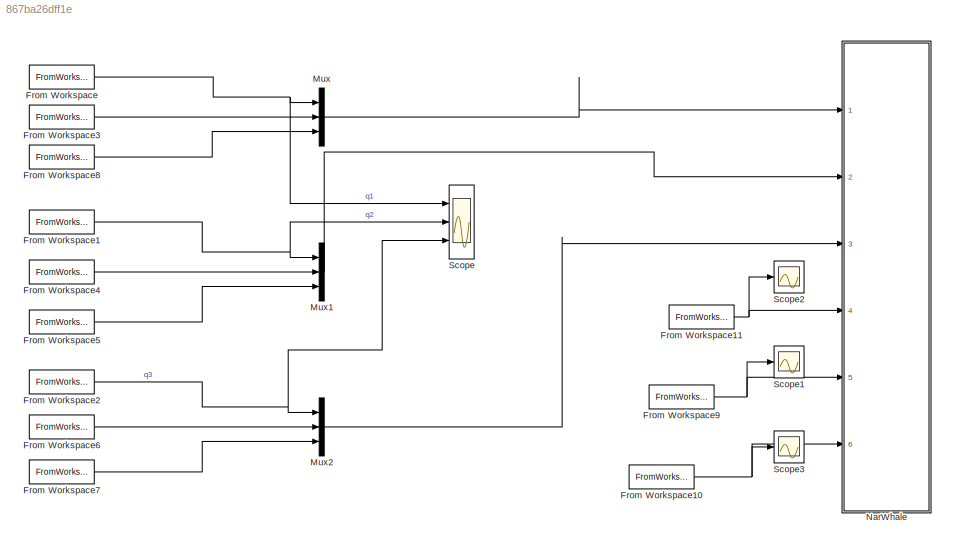
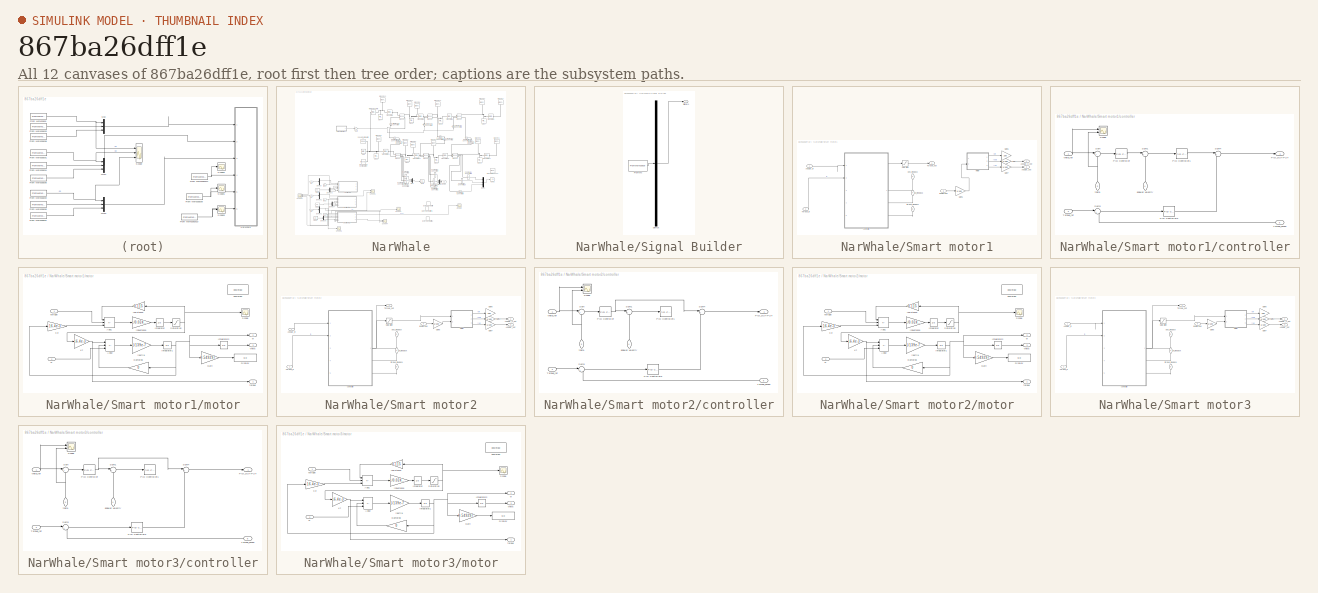
[diagram: thumbnail index - all 12 canvases of the model, root first then tree order]
MODEL slx_867ba26dff1e
KIND model
CONFIG AbsTol = auto
CONFIG EnableMultiTasking = off
CONFIG FixedStep = auto
CONFIG MaxStep = auto
CONFIG MinStep = auto
CONFIG RelTol = 1e-3
CONFIG SampleTimeConstraint = Unconstrained
CONFIG SolverName = VariableStepAuto
CONFIG StartTime = 0.0
CONFIG StopTime = 5
BLOCK [FromWorkspace] From Workspace
  Commented = on
  VariableName = q1dsim
BLOCK [FromWorkspace] From Workspace1
  Commented = on
  VariableName = q2dsim
BLOCK [FromWorkspace] From Workspace10
  Commented = on
  VariableName = tau2sim
BLOCK [FromWorkspace] From Workspace11
  Commented = on
  VariableName = tau3sim
BLOCK [FromWorkspace] From Workspace2
  Commented = on
  VariableName = q3dsim
BLOCK [FromWorkspace] From Workspace3
  Commented = on
  VariableName = q1vsim
BLOCK [FromWorkspace] From Workspace4
  Commented = on
  VariableName = q2vsim
BLOCK [FromWorkspace] From Workspace5
  Commented = on
  VariableName = q2asim
BLOCK [FromWorkspace] From Workspace6
  Commented = on
  VariableName = q3vsim
BLOCK [FromWorkspace] From Workspace7
  Commented = on
  VariableName = q3asim
BLOCK [FromWorkspace] From Workspace8
  Commented = on
  VariableName = q1asim
BLOCK [FromWorkspace] From Workspace9
  Commented = on
  VariableName = tau1sim
BLOCK [Mux] Mux
  DisplayOption = bar
  Inputs = 3
  Ports = [3, 1]
BLOCK [Mux] Mux1
  DisplayOption = bar
  Inputs = 3
  Ports = [3, 1]
BLOCK [Mux] Mux2
  DisplayOption = bar
  Inputs = 3
  Ports = [3, 1]
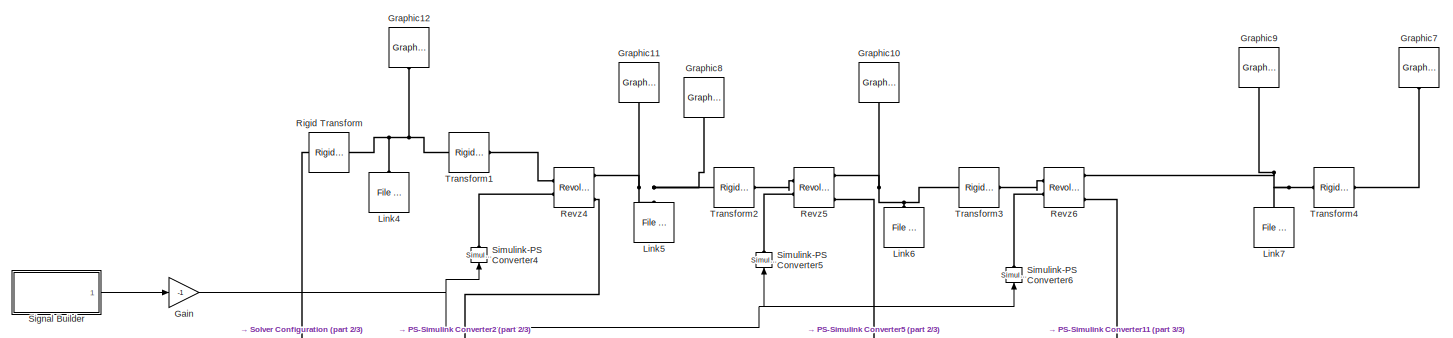
[diagram: NarWhale - part 1/3, full width, top band]
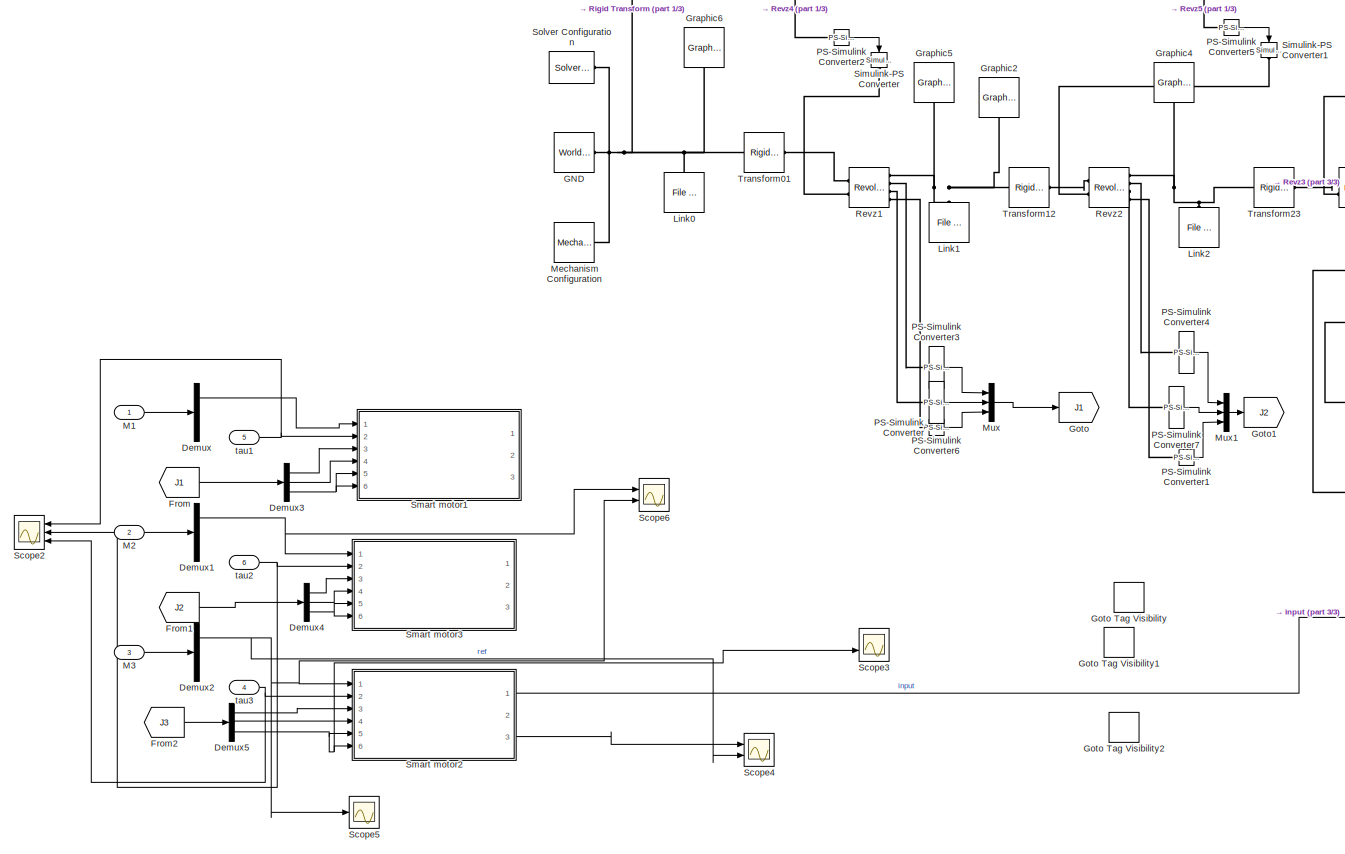
[diagram: NarWhale - part 2/3, full width, middle band]
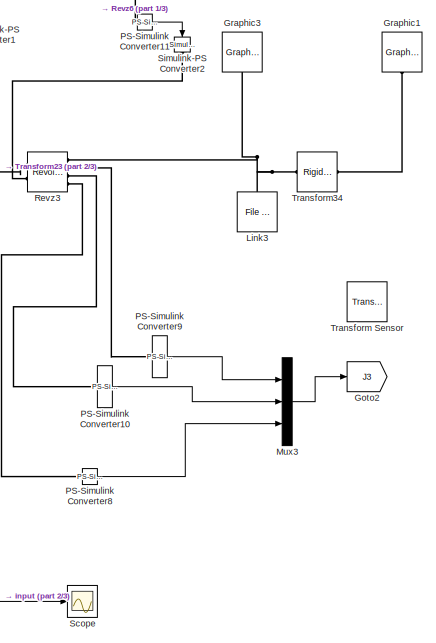
[diagram: NarWhale - part 3/3, middle right region]
BLOCK [SubSystem] NarWhale
  Ports = [6]
  RequestExecContextInheritance = off
BLOCK [Demux] NarWhale/Demux
  Commented = on
  Outputs = 3
  Ports = [1, 3]
BLOCK [Demux] NarWhale/Demux1
  Commented = on
  Outputs = 3
  Ports = [1, 3]
BLOCK [Demux] NarWhale/Demux2
  Commented = on
  Outputs = 3
  Ports = [1, 3]
BLOCK [Demux] NarWhale/Demux3
  Commented = on
  Outputs = 3
  Ports = [1, 3]
BLOCK [Demux] NarWhale/Demux4
  Commented = on
  Outputs = 3
  Ports = [1, 3]
BLOCK [Demux] NarWhale/Demux5
  Commented = on
  Outputs = 3
  Ports = [1, 3]
BLOCK [From] NarWhale/From
  Commented = on
  GotoTag = J1
BLOCK [From] NarWhale/From1
  Commented = on
  GotoTag = J2
BLOCK [From] NarWhale/From2
  Commented = on
  GotoTag = J3
BLOCK [Reference] NarWhale/GND  REF=sm_lib/Frames and
Transforms/World Frame
  Ports = [0, 0, 0, 0, 0, 0, 1]
  SourceBlock = sm_lib/Frames and\nTransforms/World Frame
  SourceProductBaseCode = MS
  SourceType = World Frame
BLOCK [Gain] NarWhale/Gain
  Gain = -1
BLOCK [Goto] NarWhale/Goto
  GotoTag = J1
BLOCK [GotoTagVisibility] NarWhale/Goto Tag Visibility
  GotoTag = J1
BLOCK [GotoTagVisibility] NarWhale/Goto Tag Visibility1
  GotoTag = J2
BLOCK [GotoTagVisibility] NarWhale/Goto Tag Visibility2
  GotoTag = J3
BLOCK [Goto] NarWhale/Goto1
  GotoTag = J2
BLOCK [Goto] NarWhale/Goto2
  GotoTag = J3
BLOCK [Reference] NarWhale/Graphic1  REF=sm_lib/Body Elements/Graphic
  NameLocation = left
  Ports = [0, 0, 0, 0, 0, 0, 1]
  SourceBlock = sm_lib/Body Elements/Graphic
  SourceProductBaseCode = MS
  SourceType = Graphic
BLOCK [Reference] NarWhale/Graphic10  REF=sm_lib/Body Elements/Graphic
  NameLocation = left
  Ports = [0, 0, 0, 0, 0, 0, 1]
  SourceBlock = sm_lib/Body Elements/Graphic
  SourceProductBaseCode = MS
  SourceType = Graphic
BLOCK [Reference] NarWhale/Graphic11  REF=sm_lib/Body Elements/Graphic
  NameLocation = left
  Ports = [0, 0, 0, 0, 0, 0, 1]
  SourceBlock = sm_lib/Body Elements/Graphic
  SourceProductBaseCode = MS
  SourceType = Graphic
BLOCK [Reference] NarWhale/Graphic12  REF=sm_lib/Body Elements/Graphic
  NameLocation = left
  Ports = [0, 0, 0, 0, 0, 0, 1]
  SourceBlock = sm_lib/Body Elements/Graphic
  SourceProductBaseCode = MS
  SourceType = Graphic
BLOCK [Reference] NarWhale/Graphic2  REF=sm_lib/Body Elements/Graphic
  NameLocation = left
  Ports = [0, 0, 0, 0, 0, 0, 1]
  SourceBlock = sm_lib/Body Elements/Graphic
  SourceProductBaseCode = MS
  SourceType = Graphic
BLOCK [Reference] NarWhale/Graphic3  REF=sm_lib/Body Elements/Graphic
  NameLocation = left
  Ports = [0, 0, 0, 0, 0, 0, 1]
  SourceBlock = sm_lib/Body Elements/Graphic
  SourceProductBaseCode = MS
  SourceType = Graphic
BLOCK [Reference] NarWhale/Graphic4  REF=sm_lib/Body Elements/Graphic
  NameLocation = left
  Ports = [0, 0, 0, 0, 0, 0, 1]
  SourceBlock = sm_lib/Body Elements/Graphic
  SourceProductBaseCode = MS
  SourceType = Graphic
BLOCK [Reference] NarWhale/Graphic5  REF=sm_lib/Body Elements/Graphic
  NameLocation = left
  Ports = [0, 0, 0, 0, 0, 0, 1]
  SourceBlock = sm_lib/Body Elements/Graphic
  SourceProductBaseCode = MS
  SourceType = Graphic
BLOCK [Reference] NarWhale/Graphic6  REF=sm_lib/Body Elements/Graphic
  NameLocation = left
  Ports = [0, 0, 0, 0, 0, 0, 1]
  SourceBlock = sm_lib/Body Elements/Graphic
  SourceProductBaseCode = MS
  SourceType = Graphic
BLOCK [Reference] NarWhale/Graphic7  REF=sm_lib/Body Elements/Graphic
  NameLocation = left
  Ports = [0, 0, 0, 0, 0, 0, 1]
  SourceBlock = sm_lib/Body Elements/Graphic
  SourceProductBaseCode = MS
  SourceType = Graphic
BLOCK [Reference] NarWhale/Graphic8  REF=sm_lib/Body Elements/Graphic
  NameLocation = left
  Ports = [0, 0, 0, 0, 0, 0, 1]
  SourceBlock = sm_lib/Body Elements/Graphic
  SourceProductBaseCode = MS
  SourceType = Graphic
BLOCK [Reference] NarWhale/Graphic9  REF=sm_lib/Body Elements/Graphic
  NameLocation = left
  Ports = [0, 0, 0, 0, 0, 0, 1]
  SourceBlock = sm_lib/Body Elements/Graphic
  SourceProductBaseCode = MS
  SourceType = Graphic
BLOCK [Reference] NarWhale/Link0  REF=sm_lib/Body Elements/File Solid
  Ports = [0, 0, 0, 0, 0, 0, 1]
  SourceBlock = sm_lib/Body Elements/File Solid
  SourceProductBaseCode = MS
  SourceType = File Solid
BLOCK [Reference] NarWhale/Link1  REF=sm_lib/Body Elements/File Solid
  Ports = [0, 0, 0, 0, 0, 0, 1]
  SourceBlock = sm_lib/Body Elements/File Solid
  SourceProductBaseCode = MS
  SourceType = File Solid
BLOCK [Reference] NarWhale/Link2  REF=sm_lib/Body Elements/File Solid
  Ports = [0, 0, 0, 0, 0, 0, 1]
  SourceBlock = sm_lib/Body Elements/File Solid
  SourceProductBaseCode = MS
  SourceType = File Solid
BLOCK [Reference] NarWhale/Link3  REF=sm_lib/Body Elements/File Solid
  Ports = [0, 0, 0, 0, 0, 0, 1]
  SourceBlock = sm_lib/Body Elements/File Solid
  SourceProductBaseCode = MS
  SourceType = File Solid
BLOCK [Reference] NarWhale/Link4  REF=sm_lib/Body Elements/File Solid
  Ports = [0, 0, 0, 0, 0, 0, 1]
  SourceBlock = sm_lib/Body Elements/File Solid
  SourceProductBaseCode = MS
  SourceType = File Solid
BLOCK [Reference] NarWhale/Link5  REF=sm_lib/Body Elements/File Solid
  Ports = [0, 0, 0, 0, 0, 0, 1]
  SourceBlock = sm_lib/Body Elements/File Solid
  SourceProductBaseCode = MS
  SourceType = File Solid
BLOCK [Reference] NarWhale/Link6  REF=sm_lib/Body Elements/File Solid
  Ports = [0, 0, 0, 0, 0, 0, 1]
  SourceBlock = sm_lib/Body Elements/File Solid
  SourceProductBaseCode = MS
  SourceType = File Solid
BLOCK [Reference] NarWhale/Link7  REF=sm_lib/Body Elements/File Solid
  Ports = [0, 0, 0, 0, 0, 0, 1]
  SourceBlock = sm_lib/Body Elements/File Solid
  SourceProductBaseCode = MS
  SourceType = File Solid
BLOCK [Inport] NarWhale/M1
BLOCK [Inport] NarWhale/M2
  Port = 2
BLOCK [Inport] NarWhale/M3
  Port = 3
BLOCK [Reference] NarWhale/Mechanism Configuration  REF=sm_lib/Utilities/Mechanism
Configuration
  Ports = [0, 0, 0, 0, 0, 0, 1]
  SourceBlock = sm_lib/Utilities/Mechanism\nConfiguration
  SourceProductBaseCode = MS
  SourceType = Mechanism\nConfiguration
BLOCK [Mux] NarWhale/Mux
  DisplayOption = bar
  Inputs = 3
  Ports = [3, 1]
BLOCK [Mux] NarWhale/Mux1
  DisplayOption = bar
  Inputs = 3
  Ports = [3, 1]
BLOCK [Mux] NarWhale/Mux3
  DisplayOption = bar
  Inputs = 3
  Ports = [3, 1]
BLOCK [Reference] NarWhale/PS-Simulink Converter  REF=nesl_utility/PS-Simulink
Converter
  Ports = [0, 1, 0, 0, 0, 1]
  SourceBlock = nesl_utility/PS-Simulink\nConverter
  SourceProductBaseCode = PW,SS
  SourceType = PS-Simulink\nConverter
BLOCK [Reference] NarWhale/PS-Simulink Converter1  REF=nesl_utility/PS-Simulink
Converter
  Ports = [0, 1, 0, 0, 0, 1]
  SourceBlock = nesl_utility/PS-Simulink\nConverter
  SourceProductBaseCode = PW,SS
  SourceType = PS-Simulink\nConverter
BLOCK [Reference] NarWhale/PS-Simulink Converter10  REF=nesl_utility/PS-Simulink
Converter
  Ports = [0, 1, 0, 0, 0, 1]
  SourceBlock = nesl_utility/PS-Simulink\nConverter
  SourceProductBaseCode = PW,SS
  SourceType = PS-Simulink\nConverter
BLOCK [Reference] NarWhale/PS-Simulink Converter11  REF=nesl_utility/PS-Simulink
Converter
  Ports = [0, 1, 0, 0, 0, 1]
  SourceBlock = nesl_utility/PS-Simulink\nConverter
  SourceProductBaseCode = PW,SS
  SourceType = PS-Simulink\nConverter
BLOCK [Reference] NarWhale/PS-Simulink Converter2  REF=nesl_utility/PS-Simulink
Converter
  Ports = [0, 1, 0, 0, 0, 1]
  SourceBlock = nesl_utility/PS-Simulink\nConverter
  SourceProductBaseCode = PW,SS
  SourceType = PS-Simulink\nConverter
BLOCK [Reference] NarWhale/PS-Simulink Converter3  REF=nesl_utility/PS-Simulink
Converter
  Ports = [0, 1, 0, 0, 0, 1]
  SourceBlock = nesl_utility/PS-Simulink\nConverter
  SourceProductBaseCode = PW,SS
  SourceType = PS-Simulink\nConverter
BLOCK [Reference] NarWhale/PS-Simulink Converter4  REF=nesl_utility/PS-Simulink
Converter
  Ports = [0, 1, 0, 0, 0, 1]
  SourceBlock = nesl_utility/PS-Simulink\nConverter
  SourceProductBaseCode = PW,SS
  SourceType = PS-Simulink\nConverter
BLOCK [Reference] NarWhale/PS-Simulink Converter5  REF=nesl_utility/PS-Simulink
Converter
  Ports = [0, 1, 0, 0, 0, 1]
  SourceBlock = nesl_utility/PS-Simulink\nConverter
  SourceProductBaseCode = PW,SS
  SourceType = PS-Simulink\nConverter
BLOCK [Reference] NarWhale/PS-Simulink Converter6  REF=nesl_utility/PS-Simulink
Converter
  Ports = [0, 1, 0, 0, 0, 1]
  SourceBlock = nesl_utility/PS-Simulink\nConverter
  SourceProductBaseCode = PW,SS
  SourceType = PS-Simulink\nConverter
BLOCK [Reference] NarWhale/PS-Simulink Converter7  REF=nesl_utility/PS-Simulink
Converter
  Ports = [0, 1, 0, 0, 0, 1]
  SourceBlock = nesl_utility/PS-Simulink\nConverter
  SourceProductBaseCode = PW,SS
  SourceType = PS-Simulink\nConverter
BLOCK [Reference] NarWhale/PS-Simulink Converter8  REF=nesl_utility/PS-Simulink
Converter
  Ports = [0, 1, 0, 0, 0, 1]
  SourceBlock = nesl_utility/PS-Simulink\nConverter
  SourceProductBaseCode = PW,SS
  SourceType = PS-Simulink\nConverter
BLOCK [Reference] NarWhale/PS-Simulink Converter9  REF=nesl_utility/PS-Simulink
Converter
  Ports = [0, 1, 0, 0, 0, 1]
  SourceBlock = nesl_utility/PS-Simulink\nConverter
  SourceProductBaseCode = PW,SS
  SourceType = PS-Simulink\nConverter
BLOCK [Reference] NarWhale/Revz1  REF=sm_lib/Joints/Revolute Joint
  Ports = [0, 0, 0, 0, 0, 2, 4]
  SourceBlock = sm_lib/Joints/Revolute Joint
  SourceProductBaseCode = MS
  SourceType = Revolute Joint
BLOCK [Reference] NarWhale/Revz2  REF=sm_lib/Joints/Revolute Joint
  Ports = [0, 0, 0, 0, 0, 2, 4]
  SourceBlock = sm_lib/Joints/Revolute Joint
  SourceProductBaseCode = MS
  SourceType = Revolute Joint
BLOCK [Reference] NarWhale/Revz3  REF=sm_lib/Joints/Revolute Joint
  Ports = [0, 0, 0, 0, 0, 2, 4]
  SourceBlock = sm_lib/Joints/Revolute Joint
  SourceProductBaseCode = MS
  SourceType = Revolute Joint
BLOCK [Reference] NarWhale/Revz4  REF=sm_lib/Joints/Revolute Joint
  Ports = [0, 0, 0, 0, 0, 2, 4]
  SourceBlock = sm_lib/Joints/Revolute Joint
  SourceProductBaseCode = MS
  SourceType = Revolute Joint
BLOCK [Reference] NarWhale/Revz5  REF=sm_lib/Joints/Revolute Joint
  Ports = [0, 0, 0, 0, 0, 2, 4]
  SourceBlock = sm_lib/Joints/Revolute Joint
  SourceProductBaseCode = MS
  SourceType = Revolute Joint
BLOCK [Reference] NarWhale/Revz6  REF=sm_lib/Joints/Revolute Joint
  Ports = [0, 0, 0, 0, 0, 2, 4]
  SourceBlock = sm_lib/Joints/Revolute Joint
  SourceProductBaseCode = MS
  SourceType = Revolute Joint
BLOCK [Reference] NarWhale/Rigid Transform  REF=sm_lib/Frames and
Transforms/Rigid
Transform
  Ports = [0, 0, 0, 0, 0, 1, 1]
  SourceBlock = sm_lib/Frames and\nTransforms/Rigid\nTransform
  SourceProductBaseCode = MS
  SourceType = Rigid\nTransform
BLOCK [Scope] NarWhale/Scope
  Floating = off
  NumInputPorts = 1
  Ports = [1]
  ScopeSpecificationString = Simulink.scopes.TimeScopeBlockCfg('CurrentConfiguration', extmgr.ConfigurationSet(extmgr.Configuration('Core','General UI',true),extmgr.Configuration('Core','Source UI',true),extmgr.Configuration('Sources','WiredSimulink',true,'DataLoggingVariableName','ScopeData1'),extmgr.Configuration('Visuals','Time Domain',true,'SerializedDisplays',{struct('MinYLimReal','-1.29903','MaxYLimReal','-0.6944','YLab...<+1479ch>
BLOCK [Scope] NarWhale/Scope2
  Commented = on
  Floating = off
  NameLocation = top
  NumInputPorts = 3
  Ports = [3]
  ScopeSpecificationString = Simulink.scopes.TimeScopeBlockCfg('CurrentConfiguration', extmgr.ConfigurationSet(extmgr.Configuration('Core','General UI',true),extmgr.Configuration('Core','Source UI',true),extmgr.Configuration('Sources','WiredSimulink',true,'DataLoggingVariableName','ScopeData3'),extmgr.Configuration('Visuals','Time Domain',true,'SerializedDisplays',{struct('MinYLimReal','-3.43928','MaxYLimReal','5.98373','YLab...<+1432ch>
BLOCK [Scope] NarWhale/Scope3
  Commented = on
  Floating = off
  NumInputPorts = 2
  Ports = [2]
  ScopeSpecificationString = Simulink.scopes.TimeScopeBlockCfg('CurrentConfiguration', extmgr.ConfigurationSet(extmgr.Configuration('Core','General UI',true),extmgr.Configuration('Core','Source UI',true),extmgr.Configuration('Sources','WiredSimulink',true,'DataLoggingVariableName','ScopeData7'),extmgr.Configuration('Visuals','Time Domain',true,'SerializedDisplays',{struct('MinYLimReal','-1.57876','MaxYLimReal','1.19738','YLab...<+1806ch>
BLOCK [Scope] NarWhale/Scope4
  Commented = on
  Floating = off
  NumInputPorts = 2
  Ports = [2]
  ScopeSpecificationString = Simulink.scopes.TimeScopeBlockCfg('CurrentConfiguration', extmgr.ConfigurationSet(extmgr.Configuration('Core','General UI',true),extmgr.Configuration('Core','Source UI',true),extmgr.Configuration('Sources','WiredSimulink',true,'DataLoggingVariableName','ScopeData12'),extmgr.Configuration('Visuals','Time Domain',true,'SerializedDisplays',{struct('MinYLimReal','-1.00987','MaxYLimReal','1.57336','YLa...<+1449ch>
BLOCK [Scope] NarWhale/Scope5
  Commented = on
  Floating = off
  NumInputPorts = 1
  Ports = [1]
  ScopeSpecificationString = Simulink.scopes.TimeScopeBlockCfg('CurrentConfiguration', extmgr.ConfigurationSet(extmgr.Configuration('Core','General UI',true),extmgr.Configuration('Core','Source UI',true),extmgr.Configuration('Sources','WiredSimulink',true,'DataLoggingVariableName','ScopeData13'),extmgr.Configuration('Visuals','Time Domain',true,'SerializedDisplays',{struct('MinYLimReal','-0.13088','MaxYLimReal','1.17788','YLa...<+1418ch>
BLOCK [Scope] NarWhale/Scope6
  Commented = on
  Floating = off
  NumInputPorts = 2
  Ports = [2]
  ScopeSpecificationString = Simulink.scopes.TimeScopeBlockCfg('CurrentConfiguration', extmgr.ConfigurationSet(extmgr.Configuration('Core','General UI',true),extmgr.Configuration('Core','Source UI',true),extmgr.Configuration('Sources','WiredSimulink',true,'DataLoggingVariableName','ScopeData9'),extmgr.Configuration('Visuals','Time Domain',true,'SerializedDisplays',{struct('MinYLimReal','-1.30875','MaxYLimReal','1.30875','YLab...<+1441ch>
BLOCK [SubSystem] NarWhale/Signal Builder
  ClipboardFcn = sigbuilder_block('clipboard');
  CloseFcn = sigbuilder_block('close');
  ContinueFcn = sigbuilder_block('continue');
  CopyFcn = sigbuilder_block('copy');
  DeleteFcn = sigbuilder_block('delete');
  LoadFcn = sigbuilder_block('load');
  MaskHideContents = on
  ModelCloseFcn = sigbuilder_block('modelClose');
  NameChangeFcn = sigbuilder_block('namechange');
  OpenFcn = sigbuilder_block('open',[437.6 199.2 550.4 400 ]);
  PauseFcn = sigbuilder_block('pause');
  Ports = [0, 1]
  PreSaveFcn = sigbuilder_block('preSave');
  RequestExecContextInheritance = off
  StartFcn = sigbuilder_block('start');
  StopFcn = sigbuilder_block('stop');
  Tag = STV Subsys
BLOCK [Demux] NarWhale/Signal Builder/Demux
  DisplayOption = none
  Outputs = 1
  Ports = [1, 1]
  Tag = STV Demux
BLOCK [FromWorkspace] NarWhale/Signal Builder/FromWs
  Tag = STV FromWs
  VariableName = tuvar
BLOCK [Outport] NarWhale/Signal Builder/Signal 1
  Tag = STV Outport
BLOCK [Reference] NarWhale/Simulink-PS Converter  REF=nesl_utility/Simulink-PS
Converter
  NameLocation = left
  Ports = [1, 0, 0, 0, 0, 0, 1]
  SourceBlock = nesl_utility/Simulink-PS\nConverter
  SourceProductBaseCode = PW,SS
  SourceType = Simulink-PS\nConverter
BLOCK [Reference] NarWhale/Simulink-PS Converter1  REF=nesl_utility/Simulink-PS
Converter
  NameLocation = left
  Ports = [1, 0, 0, 0, 0, 0, 1]
  SourceBlock = nesl_utility/Simulink-PS\nConverter
  SourceProductBaseCode = PW,SS
  SourceType = Simulink-PS\nConverter
BLOCK [Reference] NarWhale/Simulink-PS Converter2  REF=nesl_utility/Simulink-PS
Converter
  NameLocation = left
  Ports = [1, 0, 0, 0, 0, 0, 1]
  SourceBlock = nesl_utility/Simulink-PS\nConverter
  SourceProductBaseCode = PW,SS
  SourceType = Simulink-PS\nConverter
BLOCK [Reference] NarWhale/Simulink-PS Converter4  REF=nesl_utility/Simulink-PS
Converter
  NameLocation = right
  Ports = [1, 0, 0, 0, 0, 0, 1]
  SourceBlock = nesl_utility/Simulink-PS\nConverter
  SourceProductBaseCode = PW,SS
  SourceType = Simulink-PS\nConverter
BLOCK [Reference] NarWhale/Simulink-PS Converter5  REF=nesl_utility/Simulink-PS
Converter
  NameLocation = right
  Ports = [1, 0, 0, 0, 0, 0, 1]
  SourceBlock = nesl_utility/Simulink-PS\nConverter
  SourceProductBaseCode = PW,SS
  SourceType = Simulink-PS\nConverter
BLOCK [Reference] NarWhale/Simulink-PS Converter6  REF=nesl_utility/Simulink-PS
Converter
  NameLocation = right
  Ports = [1, 0, 0, 0, 0, 0, 1]
  SourceBlock = nesl_utility/Simulink-PS\nConverter
  SourceProductBaseCode = PW,SS
  SourceType = Simulink-PS\nConverter
BLOCK [SubSystem] NarWhale/Smart motor1
  Commented = on
  Ports = [6, 3]
  RequestExecContextInheritance = off
BLOCK [Inport] NarWhale/Smart motor1/Angular_in
BLOCK [Outport] NarWhale/Smart motor1/Angular_out
  Port = 3
BLOCK [Outport] NarWhale/Smart motor1/Angular_v_out
  Port = 2
BLOCK [Gain] NarWhale/Smart motor1/Gain1
  Gain = 1/100
BLOCK [Gain] NarWhale/Smart motor1/Gain5
  Gain = 1/100
BLOCK [Gain] NarWhale/Smart motor1/Gain6
  Gain = 100
BLOCK [Gain] NarWhale/Smart motor1/Gain7
  Gain = 1/100
BLOCK [Saturate] NarWhale/Smart motor1/Saturation
  LowerLimit = -12
  UpperLimit = 12
BLOCK [Inport] NarWhale/Smart motor1/Torque_in
  Port = 2
BLOCK [Outport] NarWhale/Smart motor1/Torque_out
BLOCK [SubSystem] NarWhale/Smart motor1/controller
  PortSchema = {"entries":[{"content":{"sides":[{"content":{"connectorIds":["In1","In2"]},"type":"ConnectorPlacement.EquallySpacedRectSide","uuid":"8a7634be-fa1b-404b-89a0-2c01fe6be74e"},{"content":{"connectorIds":["Out1","In3","In4","In5"],"side":"RIGHT"},"type":"ConnectorPlacement.EquallySpacedRectSide","uuid":"8f130a65-85af-479a-b8ce-1781e3e6a993"},{"content":{"connectorIds":[],"side":"TOP"},"type":"Connector...<+264ch>  <repeated x3 — deduplicated; at blocks: controller>
  Ports = [5, 1]
  RequestExecContextInheritance = off
BLOCK [Reference] NarWhale/Smart motor1/controller/PID Controller  REF=slpidlib/PID Controller
  Ports = [1, 1]
  SourceBlock = slpidlib/PID Controller
  SourceProductBaseCode = SL
  SourceType = PID 1dof
BLOCK [Reference] NarWhale/Smart motor1/controller/PID Controller1  REF=slpidlib/PID Controller
  Ports = [1, 1]
  SourceBlock = slpidlib/PID Controller
  SourceProductBaseCode = SL
  SourceType = PID 1dof
BLOCK [Reference] NarWhale/Smart motor1/controller/PID Controller3  REF=slpidlib/PID Controller
  Ports = [1, 1]
  SourceBlock = slpidlib/PID Controller
  SourceProductBaseCode = SL
  SourceType = PID 1dof
BLOCK [Outport] NarWhale/Smart motor1/controller/PID_OUTPUT
BLOCK [Scope] NarWhale/Smart motor1/controller/Scope
  Floating = off
  NumInputPorts = 2
  Ports = [2]
  ScopeSpecificationString = Simulink.scopes.TimeScopeBlockCfg('CurrentConfiguration', extmgr.ConfigurationSet(extmgr.Configuration('Core','General UI',true),extmgr.Configuration('Core','Source UI',true),extmgr.Configuration('Sources','WiredSimulink',true,'DataLoggingVariableName','ScopeData8'),extmgr.Configuration('Visuals','Time Domain',true,'SerializedDisplays',{struct('MinYLimReal','-0.4827','MaxYLimReal','0.31629','YLabe...<+1446ch>
BLOCK [Sum] NarWhale/Smart motor1/controller/Sum
  Inputs = |+-
  Ports = [2, 1]
BLOCK [Sum] NarWhale/Smart motor1/controller/Sum1
  Inputs = |+-
  Ports = [2, 1]
BLOCK [Sum] NarWhale/Smart motor1/controller/Sum3
  Inputs = |+-
  Ports = [2, 1]
BLOCK [Sum] NarWhale/Smart motor1/controller/Sum4
  Inputs = |++
  Ports = [2, 1]
BLOCK [Inport] NarWhale/Smart motor1/controller/Torque_ref
  Port = 2
BLOCK [Inport] NarWhale/Smart motor1/controller/Torque_sense
  NameLocation = top
  Port = 5
BLOCK [Inport] NarWhale/Smart motor1/controller/angular velocity
  NameLocation = right
  Port = 4
BLOCK [Inport] NarWhale/Smart motor1/controller/theta
  NameLocation = right
  Port = 3
BLOCK [Inport] NarWhale/Smart motor1/controller/theta_ref
BLOCK [Inport] NarWhale/Smart motor1/load torque
  Port = 6
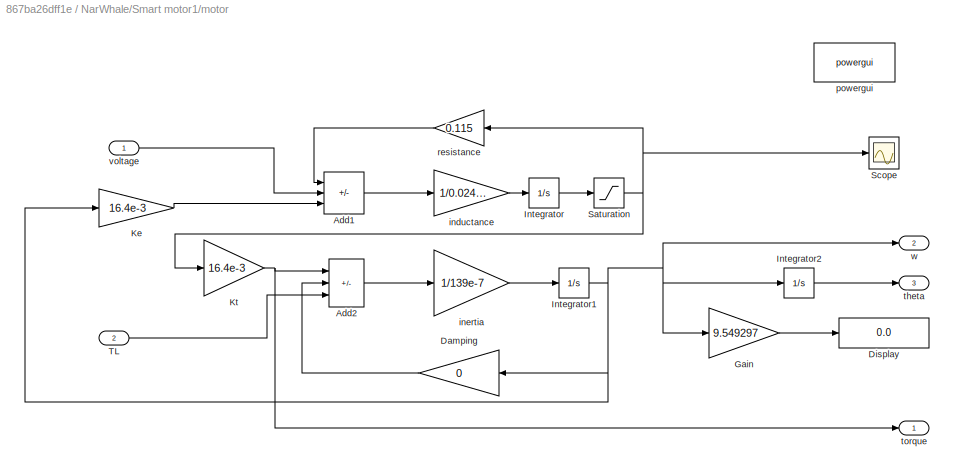
BLOCK [SubSystem] NarWhale/Smart motor1/motor
  Ports = [2, 3]
  RequestExecContextInheritance = off
BLOCK [Sum] NarWhale/Smart motor1/motor/Add1
  IconShape = rectangular
  Inputs = -+-
  Ports = [3, 1]
BLOCK [Sum] NarWhale/Smart motor1/motor/Add2
  IconShape = rectangular
  Inputs = +-+
  Ports = [3, 1]
BLOCK [Gain] NarWhale/Smart motor1/motor/Damping
  Gain = 0
  NameLocation = top
BLOCK [Display] NarWhale/Smart motor1/motor/Display
  Decimation = 1
  Ports = [1]
BLOCK [Gain] NarWhale/Smart motor1/motor/Gain
  Gain = 9.549297
BLOCK [Integrator] NarWhale/Smart motor1/motor/Integrator
  Ports = [1, 1]
BLOCK [Integrator] NarWhale/Smart motor1/motor/Integrator1
  Ports = [1, 1]
BLOCK [Integrator] NarWhale/Smart motor1/motor/Integrator2
  Ports = [1, 1]
BLOCK [Gain] NarWhale/Smart motor1/motor/Ke
  Gain = 16.4e-3
BLOCK [Gain] NarWhale/Smart motor1/motor/Kt
  Gain = 16.4e-3
BLOCK [Saturate] NarWhale/Smart motor1/motor/Saturation
  LowerLimit = -6
  UpperLimit = 6
BLOCK [Scope] NarWhale/Smart motor1/motor/Scope
  Floating = off
  NumInputPorts = 1
  Ports = [1]
  ScopeSpecificationString = Simulink.scopes.TimeScopeBlockCfg('CurrentConfiguration', extmgr.ConfigurationSet(extmgr.Configuration('Core','General UI',true),extmgr.Configuration('Core','Source UI',true),extmgr.Configuration('Sources','WiredSimulink',true,'DataLoggingVariableName','ScopeData10'),extmgr.Configuration('Visuals','Time Domain',true,'SerializedDisplays',{struct('MinYLimReal','-7.5','MaxYLimReal','7.5','YLabelReal'...<+1436ch>  <repeated x3 — deduplicated; at blocks: Scope>
BLOCK [Inport] NarWhale/Smart motor1/motor/TL
  Port = 2
BLOCK [Gain] NarWhale/Smart motor1/motor/inductance
  Gain = 1/0.0245e-3
BLOCK [Gain] NarWhale/Smart motor1/motor/inertia
  Gain = 1/139e-7
BLOCK [Reference] NarWhale/Smart motor1/motor/powergui  REF=spspowerguiLib/powergui
  Ports = []
  Priority = 1
  SourceBlock = spspowerguiLib/powergui
  SourceProductBaseCode = PS
  SourceType = PSB option menu block
BLOCK [Gain] NarWhale/Smart motor1/motor/resistance
  Gain = 0.115
  NameLocation = top
BLOCK [Outport] NarWhale/Smart motor1/motor/theta
  Port = 3
BLOCK [Outport] NarWhale/Smart motor1/motor/torque
BLOCK [Inport] NarWhale/Smart motor1/motor/voltage
BLOCK [Outport] NarWhale/Smart motor1/motor/w
  Port = 2
BLOCK [Inport] NarWhale/Smart motor1/pos_feedbck
  NameLocation = left
  Port = 3
BLOCK [Inport] NarWhale/Smart motor1/torque_feedbck
  NameLocation = left
  Port = 5
BLOCK [Inport] NarWhale/Smart motor1/w_feedbck
  NameLocation = left
  Port = 4
BLOCK [SubSystem] NarWhale/Smart motor2
  Commented = on
  Ports = [6, 3]
  RequestExecContextInheritance = off
BLOCK [Inport] NarWhale/Smart motor2/Angular_in
BLOCK [Outport] NarWhale/Smart motor2/Angular_out
  Port = 3
BLOCK [Outport] NarWhale/Smart motor2/Angular_v_out
  Port = 2
BLOCK [Gain] NarWhale/Smart motor2/Gain1
  Commented = on
  Gain = 1/100
BLOCK [Gain] NarWhale/Smart motor2/Gain5
  Commented = on
  Gain = 1/100
BLOCK [Gain] NarWhale/Smart motor2/Gain6
  Commented = on
  Gain = 100
BLOCK [Gain] NarWhale/Smart motor2/Gain7
  Commented = on
  Gain = 1/100
BLOCK [Saturate] NarWhale/Smart motor2/Saturation
  LowerLimit = -12
  UpperLimit = 12
BLOCK [Inport] NarWhale/Smart motor2/Torque_in
  Port = 2
BLOCK [Outport] NarWhale/Smart motor2/Torque_out
BLOCK [SubSystem] NarWhale/Smart motor2/controller
  Ports = [5, 1]
  RequestExecContextInheritance = off
BLOCK [Reference] NarWhale/Smart motor2/controller/PID Controller  REF=slpidlib/PID Controller
  Ports = [1, 1]
  SourceBlock = slpidlib/PID Controller
  SourceProductBaseCode = SL
  SourceType = PID 1dof
BLOCK [Reference] NarWhale/Smart motor2/controller/PID Controller1  REF=slpidlib/PID Controller
  Ports = [1, 1]
  SourceBlock = slpidlib/PID Controller
  SourceProductBaseCode = SL
  SourceType = PID 1dof
BLOCK [Reference] NarWhale/Smart motor2/controller/PID Controller3  REF=slpidlib/PID Controller
  Ports = [1, 1]
  SourceBlock = slpidlib/PID Controller
  SourceProductBaseCode = SL
  SourceType = PID 1dof
BLOCK [Outport] NarWhale/Smart motor2/controller/PID_OUTPUT
BLOCK [Scope] NarWhale/Smart motor2/controller/Scope
  Floating = off
  NumInputPorts = 2
  Ports = [2]
  ScopeSpecificationString = Simulink.scopes.TimeScopeBlockCfg('CurrentConfiguration', extmgr.ConfigurationSet(extmgr.Configuration('Core','General UI',true),extmgr.Configuration('Core','Source UI',true),extmgr.Configuration('Sources','WiredSimulink',true,'DataLoggingVariableName','ScopeData8'),extmgr.Configuration('Visuals','Time Domain',true,'SerializedDisplays',{struct('MinYLimReal','-34.66732','MaxYLimReal','25.40571','YL...<+1456ch>
BLOCK [Sum] NarWhale/Smart motor2/controller/Sum
  Inputs = |+-
  Ports = [2, 1]
BLOCK [Sum] NarWhale/Smart motor2/controller/Sum1
  Inputs = |+-
  Ports = [2, 1]
BLOCK [Sum] NarWhale/Smart motor2/controller/Sum3
  Inputs = |+-
  Ports = [2, 1]
BLOCK [Sum] NarWhale/Smart motor2/controller/Sum4
  Inputs = |++
  Ports = [2, 1]
BLOCK [Inport] NarWhale/Smart motor2/controller/Torque_ref
  Port = 2
BLOCK [Inport] NarWhale/Smart motor2/controller/Torque_sense
  NameLocation = top
  Port = 5
BLOCK [Inport] NarWhale/Smart motor2/controller/angular velocity
  NameLocation = right
  Port = 4
BLOCK [Inport] NarWhale/Smart motor2/controller/theta
  NameLocation = right
  Port = 3
BLOCK [Inport] NarWhale/Smart motor2/controller/theta_ref
BLOCK [Inport] NarWhale/Smart motor2/load torque
  Port = 6
BLOCK [SubSystem] NarWhale/Smart motor2/motor
  Commented = on
  Ports = [2, 3]
  RequestExecContextInheritance = off
BLOCK [Sum] NarWhale/Smart motor2/motor/Add1
  IconShape = rectangular
  Inputs = -+-
  Ports = [3, 1]
BLOCK [Sum] NarWhale/Smart motor2/motor/Add2
  IconShape = rectangular
  Inputs = +-+
  Ports = [3, 1]
BLOCK [Gain] NarWhale/Smart motor2/motor/Damping
  Gain = 0
  NameLocation = top
BLOCK [Display] NarWhale/Smart motor2/motor/Display
  Decimation = 1
  Ports = [1]
BLOCK [Gain] NarWhale/Smart motor2/motor/Gain
  Gain = 9.549297
BLOCK [Integrator] NarWhale/Smart motor2/motor/Integrator
  Ports = [1, 1]
BLOCK [Integrator] NarWhale/Smart motor2/motor/Integrator1
  Ports = [1, 1]
BLOCK [Integrator] NarWhale/Smart motor2/motor/Integrator2
  Ports = [1, 1]
BLOCK [Gain] NarWhale/Smart motor2/motor/Ke
  Gain = 16.4e-3
BLOCK [Gain] NarWhale/Smart motor2/motor/Kt
  Gain = 16.4e-3
BLOCK [Saturate] NarWhale/Smart motor2/motor/Saturation
  LowerLimit = -6
  UpperLimit = 6
BLOCK [Scope] NarWhale/Smart motor2/motor/Scope
  Floating = off
  NumInputPorts = 1
  Ports = [1]
BLOCK [Inport] NarWhale/Smart motor2/motor/TL
  Port = 2
BLOCK [Gain] NarWhale/Smart motor2/motor/inductance
  Gain = 1/0.0245e-3
BLOCK [Gain] NarWhale/Smart motor2/motor/inertia
  Gain = 1/139e-7
BLOCK [Reference] NarWhale/Smart motor2/motor/powergui  REF=spspowerguiLib/powergui
  Ports = []
  Priority = 1
  SourceBlock = spspowerguiLib/powergui
  SourceProductBaseCode = PS
  SourceType = PSB option menu block
BLOCK [Gain] NarWhale/Smart motor2/motor/resistance
  Gain = 0.115
  NameLocation = top
BLOCK [Outport] NarWhale/Smart motor2/motor/theta
  Port = 3
BLOCK [Outport] NarWhale/Smart motor2/motor/torque
BLOCK [Inport] NarWhale/Smart motor2/motor/voltage
BLOCK [Outport] NarWhale/Smart motor2/motor/w
  Port = 2
BLOCK [Inport] NarWhale/Smart motor2/pos_feedbck
  NameLocation = left
  Port = 3
BLOCK [Inport] NarWhale/Smart motor2/torque_feedbck
  NameLocation = left
  Port = 5
BLOCK [Inport] NarWhale/Smart motor2/w_feedbck
  NameLocation = left
  Port = 4
BLOCK [SubSystem] NarWhale/Smart motor3
  Commented = on
  Ports = [6, 3]
  RequestExecContextInheritance = off
BLOCK [Inport] NarWhale/Smart motor3/Angular_in
BLOCK [Outport] NarWhale/Smart motor3/Angular_out
  Port = 3
BLOCK [Outport] NarWhale/Smart motor3/Angular_v_out
  Port = 2
BLOCK [Gain] NarWhale/Smart motor3/Gain1
  Commented = on
  Gain = 1/100
BLOCK [Gain] NarWhale/Smart motor3/Gain5
  Commented = on
  Gain = 1/100
BLOCK [Gain] NarWhale/Smart motor3/Gain6
  Commented = on
  Gain = 100
BLOCK [Gain] NarWhale/Smart motor3/Gain7
  Commented = on
  Gain = 1/100
BLOCK [Saturate] NarWhale/Smart motor3/Saturation
  LowerLimit = -12
  UpperLimit = 12
BLOCK [Inport] NarWhale/Smart motor3/Torque_in
  Port = 2
BLOCK [Outport] NarWhale/Smart motor3/Torque_out
BLOCK [SubSystem] NarWhale/Smart motor3/controller
  Ports = [5, 1]
  RequestExecContextInheritance = off
BLOCK [Reference] NarWhale/Smart motor3/controller/PID Controller  REF=slpidlib/PID Controller
  Ports = [1, 1]
  SourceBlock = slpidlib/PID Controller
  SourceProductBaseCode = SL
  SourceType = PID 1dof
BLOCK [Reference] NarWhale/Smart motor3/controller/PID Controller1  REF=slpidlib/PID Controller
  Ports = [1, 1]
  SourceBlock = slpidlib/PID Controller
  SourceProductBaseCode = SL
  SourceType = PID 1dof
BLOCK [Reference] NarWhale/Smart motor3/controller/PID Controller3  REF=slpidlib/PID Controller
  Ports = [1, 1]
  SourceBlock = slpidlib/PID Controller
  SourceProductBaseCode = SL
  SourceType = PID 1dof
BLOCK [Outport] NarWhale/Smart motor3/controller/PID_OUTPUT
BLOCK [Scope] NarWhale/Smart motor3/controller/Scope
  Floating = off
  NumInputPorts = 2
  Ports = [2]
  ScopeSpecificationString = Simulink.scopes.TimeScopeBlockCfg('CurrentConfiguration', extmgr.ConfigurationSet(extmgr.Configuration('Core','General UI',true),extmgr.Configuration('Core','Source UI',true),extmgr.Configuration('Sources','WiredSimulink',true,'DataLoggingVariableName','ScopeData8'),extmgr.Configuration('Visuals','Time Domain',true,'SerializedDisplays',{struct('MinYLimReal','-14.707','MaxYLimReal','7.58142','YLabe...<+1446ch>
BLOCK [Sum] NarWhale/Smart motor3/controller/Sum
  Inputs = |+-
  Ports = [2, 1]
BLOCK [Sum] NarWhale/Smart motor3/controller/Sum1
  Inputs = |+-
  Ports = [2, 1]
BLOCK [Sum] NarWhale/Smart motor3/controller/Sum3
  Inputs = |+-
  Ports = [2, 1]
BLOCK [Sum] NarWhale/Smart motor3/controller/Sum4
  Inputs = |++
  Ports = [2, 1]
BLOCK [Inport] NarWhale/Smart motor3/controller/Torque_ref
  Port = 2
BLOCK [Inport] NarWhale/Smart motor3/controller/Torque_sense
  NameLocation = top
  Port = 5
BLOCK [Inport] NarWhale/Smart motor3/controller/angular velocity
  NameLocation = right
  Port = 4
BLOCK [Inport] NarWhale/Smart motor3/controller/theta
  NameLocation = right
  Port = 3
BLOCK [Inport] NarWhale/Smart motor3/controller/theta_ref
BLOCK [Inport] NarWhale/Smart motor3/load torque
  Port = 6
BLOCK [SubSystem] NarWhale/Smart motor3/motor
  Commented = on
  Ports = [2, 3]
  RequestExecContextInheritance = off
BLOCK [Sum] NarWhale/Smart motor3/motor/Add1
  IconShape = rectangular
  Inputs = -+-
  Ports = [3, 1]
BLOCK [Sum] NarWhale/Smart motor3/motor/Add2
  IconShape = rectangular
  Inputs = +-+
  Ports = [3, 1]
BLOCK [Gain] NarWhale/Smart motor3/motor/Damping
  Gain = 0
  NameLocation = top
BLOCK [Display] NarWhale/Smart motor3/motor/Display
  Decimation = 1
  Ports = [1]
BLOCK [Gain] NarWhale/Smart motor3/motor/Gain
  Gain = 9.549297
BLOCK [Integrator] NarWhale/Smart motor3/motor/Integrator
  Ports = [1, 1]
BLOCK [Integrator] NarWhale/Smart motor3/motor/Integrator1
  Ports = [1, 1]
BLOCK [Integrator] NarWhale/Smart motor3/motor/Integrator2
  Ports = [1, 1]
BLOCK [Gain] NarWhale/Smart motor3/motor/Ke
  Gain = 16.4e-3
BLOCK [Gain] NarWhale/Smart motor3/motor/Kt
  Gain = 16.4e-3
BLOCK [Saturate] NarWhale/Smart motor3/motor/Saturation
  LowerLimit = -6
  UpperLimit = 6
BLOCK [Scope] NarWhale/Smart motor3/motor/Scope
  Floating = off
  NumInputPorts = 1
  Ports = [1]
BLOCK [Inport] NarWhale/Smart motor3/motor/TL
  Port = 2
BLOCK [Gain] NarWhale/Smart motor3/motor/inductance
  Gain = 1/0.0245e-3
BLOCK [Gain] NarWhale/Smart motor3/motor/inertia
  Gain = 1/139e-7
BLOCK [Reference] NarWhale/Smart motor3/motor/powergui  REF=spspowerguiLib/powergui
  Ports = []
  Priority = 1
  SourceBlock = spspowerguiLib/powergui
  SourceProductBaseCode = PS
  SourceType = PSB option menu block
BLOCK [Gain] NarWhale/Smart motor3/motor/resistance
  Gain = 0.115
  NameLocation = top
BLOCK [Outport] NarWhale/Smart motor3/motor/theta
  Port = 3
BLOCK [Outport] NarWhale/Smart motor3/motor/torque
BLOCK [Inport] NarWhale/Smart motor3/motor/voltage
BLOCK [Outport] NarWhale/Smart motor3/motor/w
  Port = 2
BLOCK [Inport] NarWhale/Smart motor3/pos_feedbck
  NameLocation = left
  Port = 3
BLOCK [Inport] NarWhale/Smart motor3/torque_feedbck
  NameLocation = left
  Port = 5
BLOCK [Inport] NarWhale/Smart motor3/w_feedbck
  NameLocation = left
  Port = 4
BLOCK [Reference] NarWhale/Solver Configuration  REF=nesl_utility/Solver
Configuration
  Ports = [0, 0, 0, 0, 0, 0, 1]
  SourceBlock = nesl_utility/Solver\nConfiguration
  SourceProductBaseCode = PW,SS
  SourceType = Solver\nConfiguration
BLOCK [Reference] NarWhale/Transform Sensor  REF=sm_lib/Frames and
Transforms/Transform
Sensor
  Ports = [0, 0, 0, 0, 0, 1, 1]
  SourceBlock = sm_lib/Frames and\nTransforms/Transform\nSensor
  SourceProductBaseCode = MS
  SourceType = Transform\nSensor
BLOCK [Reference] NarWhale/Transform01  REF=sm_lib/Frames and
Transforms/Rigid
Transform
  Ports = [0, 0, 0, 0, 0, 1, 1]
  SourceBlock = sm_lib/Frames and\nTransforms/Rigid\nTransform
  SourceProductBaseCode = MS
  SourceType = Rigid\nTransform
BLOCK [Reference] NarWhale/Transform1  REF=sm_lib/Frames and
Transforms/Rigid
Transform
  Ports = [0, 0, 0, 0, 0, 1, 1]
  SourceBlock = sm_lib/Frames and\nTransforms/Rigid\nTransform
  SourceProductBaseCode = MS
  SourceType = Rigid\nTransform
BLOCK [Reference] NarWhale/Transform12  REF=sm_lib/Frames and
Transforms/Rigid
Transform
  Ports = [0, 0, 0, 0, 0, 1, 1]
  SourceBlock = sm_lib/Frames and\nTransforms/Rigid\nTransform
  SourceProductBaseCode = MS
  SourceType = Rigid\nTransform
BLOCK [Reference] NarWhale/Transform2  REF=sm_lib/Frames and
Transforms/Rigid
Transform
  Ports = [0, 0, 0, 0, 0, 1, 1]
  SourceBlock = sm_lib/Frames and\nTransforms/Rigid\nTransform
  SourceProductBaseCode = MS
  SourceType = Rigid\nTransform
BLOCK [Reference] NarWhale/Transform23  REF=sm_lib/Frames and
Transforms/Rigid
Transform
  Ports = [0, 0, 0, 0, 0, 1, 1]
  SourceBlock = sm_lib/Frames and\nTransforms/Rigid\nTransform
  SourceProductBaseCode = MS
  SourceType = Rigid\nTransform
BLOCK [Reference] NarWhale/Transform3  REF=sm_lib/Frames and
Transforms/Rigid
Transform
  Ports = [0, 0, 0, 0, 0, 1, 1]
  SourceBlock = sm_lib/Frames and\nTransforms/Rigid\nTransform
  SourceProductBaseCode = MS
  SourceType = Rigid\nTransform
BLOCK [Reference] NarWhale/Transform34  REF=sm_lib/Frames and
Transforms/Rigid
Transform
  Ports = [0, 0, 0, 0, 0, 1, 1]
  SourceBlock = sm_lib/Frames and\nTransforms/Rigid\nTransform
  SourceProductBaseCode = MS
  SourceType = Rigid\nTransform
BLOCK [Reference] NarWhale/Transform4  REF=sm_lib/Frames and
Transforms/Rigid
Transform
  Ports = [0, 0, 0, 0, 0, 1, 1]
  SourceBlock = sm_lib/Frames and\nTransforms/Rigid\nTransform
  SourceProductBaseCode = MS
  SourceType = Rigid\nTransform
BLOCK [Inport] NarWhale/tau1
  Port = 5
BLOCK [Inport] NarWhale/tau2
  Port = 6
BLOCK [Inport] NarWhale/tau3
  Port = 4
BLOCK [Scope] Scope
  Floating = off
  NumInputPorts = 3
  Ports = [3]
  ScopeSpecificationString = Simulink.scopes.TimeScopeBlockCfg('CurrentConfiguration', extmgr.ConfigurationSet(extmgr.Configuration('Core','General UI',true),extmgr.Configuration('Core','Source UI',true),extmgr.Configuration('Sources','WiredSimulink',true,'DataLoggingVariableName','ScopeData1'),extmgr.Configuration('Visuals','Time Domain',true,'SerializedDisplays',{struct('MinYLimReal','-1.30875','MaxYLimReal','1.30875','YLab...<+1466ch>
BLOCK [Scope] Scope1
  Floating = off
  NumInputPorts = 1
  Ports = [1]
  ScopeSpecificationString = Simulink.scopes.TimeScopeBlockCfg('CurrentConfiguration', extmgr.ConfigurationSet(extmgr.Configuration('Core','General UI',true),extmgr.Configuration('Core','Source UI',true),extmgr.Configuration('Sources','WiredSimulink',true,'DataLoggingVariableName','ScopeData4'),extmgr.Configuration('Visuals','Time Domain',true,'SerializedDisplays',{struct('MinYLimReal','-0.00058','MaxYLimReal','0.00209','YLab...<+1746ch>
BLOCK [Scope] Scope2
  Floating = off
  NumInputPorts = 1
  Ports = [1]
  ScopeSpecificationString = Simulink.scopes.TimeScopeBlockCfg('CurrentConfiguration', extmgr.ConfigurationSet(extmgr.Configuration('Core','General UI',true),extmgr.Configuration('Core','Source UI',true),extmgr.Configuration('Sources','WiredSimulink',true,'DataLoggingVariableName','ScopeData5'),extmgr.Configuration('Visuals','Time Domain',true,'SerializedDisplays',{struct('MinYLimReal','-2.52218','MaxYLimReal','-2.25387','YLa...<+1432ch>
BLOCK [Scope] Scope3
  Floating = off
  NumInputPorts = 1
  Ports = [1]
  ScopeSpecificationString = Simulink.scopes.TimeScopeBlockCfg('CurrentConfiguration', extmgr.ConfigurationSet(extmgr.Configuration('Core','General UI',true),extmgr.Configuration('Core','Source UI',true),extmgr.Configuration('Sources','WiredSimulink',true,'DataLoggingVariableName','ScopeData6'),extmgr.Configuration('Visuals','Time Domain',true,'SerializedDisplays',{struct('MinYLimReal','-3.43928','MaxYLimReal','5.98373','YLab...<+1430ch>
NET From Workspace10:1 -> NarWhale:6, Scope3:1
NET From Workspace11:1 -> NarWhale:4, Scope2:1
NET From Workspace1:1 -> Mux1:1, Scope:2
NET From Workspace2:1 -> Mux2:1, Scope:3
LINE From Workspace3:1 -> Mux:2
LINE From Workspace4:1 -> Mux1:2
LINE From Workspace5:1 -> Mux1:3
LINE From Workspace6:1 -> Mux2:2
LINE From Workspace7:1 -> Mux2:3
LINE From Workspace8:1 -> Mux:3
NET From Workspace9:1 -> NarWhale:5, Scope1:1
NET From Workspace:1 -> Mux:1, Scope:1
LINE Mux1:1 -> NarWhale:2
LINE Mux2:1 -> NarWhale:3
LINE Mux:1 -> NarWhale:1
NET NarWhale/Demux1:1 -> NarWhale/Scope6:1, NarWhale/Smart motor3:1
NET NarWhale/Demux2:1 -> NarWhale/Scope4:2, NarWhale/Scope5:1, NarWhale/Scope6:2, NarWhale/Smart motor2:1
LINE NarWhale/Demux3:1 -> NarWhale/Smart motor1:3
LINE NarWhale/Demux3:2 -> NarWhale/Smart motor1:4
NET NarWhale/Demux3:3 -> NarWhale/Smart motor1:5, NarWhale/Smart motor1:6
LINE NarWhale/Demux4:1 -> NarWhale/Smart motor3:3
LINE NarWhale/Demux4:2 -> NarWhale/Smart motor3:4
NET NarWhale/Demux4:3 -> NarWhale/Smart motor3:5, NarWhale/Smart motor3:6
LINE NarWhale/Demux5:1 -> NarWhale/Smart motor2:3
LINE NarWhale/Demux5:2 -> NarWhale/Smart motor2:4
NET NarWhale/Demux5:3 -> NarWhale/Scope3:2, NarWhale/Smart motor2:5, NarWhale/Smart motor2:6
LINE NarWhale/Demux:1 -> NarWhale/Smart motor1:1
LINE NarWhale/From1:1 -> NarWhale/Demux4:1
LINE NarWhale/From2:1 -> NarWhale/Demux5:1
LINE NarWhale/From:1 -> NarWhale/Demux3:1
NET NarWhale/Gain:1 -> NarWhale/Simulink-PS Converter4:1, NarWhale/Simulink-PS Converter5:1, NarWhale/Simulink-PS Converter6:1
LINE NarWhale/M1:1 -> NarWhale/Demux:1
LINE NarWhale/M2:1 -> NarWhale/Demux1:1
LINE NarWhale/M3:1 -> NarWhale/Demux2:1
LINE NarWhale/Mux1:1 -> NarWhale/Goto1:1
LINE NarWhale/Mux3:1 -> NarWhale/Goto2:1
LINE NarWhale/Mux:1 -> NarWhale/Goto:1
LINE NarWhale/PS-Simulink Converter10:1 -> NarWhale/Mux3:2
LINE NarWhale/PS-Simulink Converter11:1 -> NarWhale/Simulink-PS Converter2:1
LINE NarWhale/PS-Simulink Converter1:1 -> NarWhale/Mux1:3
LINE NarWhale/PS-Simulink Converter2:1 -> NarWhale/Simulink-PS Converter:1
LINE NarWhale/PS-Simulink Converter3:1 -> NarWhale/Mux:1
LINE NarWhale/PS-Simulink Converter4:1 -> NarWhale/Mux1:1
LINE NarWhale/PS-Simulink Converter5:1 -> NarWhale/Simulink-PS Converter1:1
LINE NarWhale/PS-Simulink Converter6:1 -> NarWhale/Mux:2
LINE NarWhale/PS-Simulink Converter7:1 -> NarWhale/Mux1:2
LINE NarWhale/PS-Simulink Converter8:1 -> NarWhale/Mux3:3
LINE NarWhale/PS-Simulink Converter9:1 -> NarWhale/Mux3:1
LINE NarWhale/PS-Simulink Converter:1 -> NarWhale/Mux:3
LINE NarWhale/Signal Builder:1 -> NarWhale/Gain:1
LINE NarWhale/Smart motor1/Angular_in:1 -> NarWhale/Smart motor1/controller:1
LINE NarWhale/Smart motor1/Gain1:1 -> NarWhale/Smart motor1/Angular_v_out:1
LINE NarWhale/Smart motor1/Gain5:1 -> NarWhale/Smart motor1/motor:2
LINE NarWhale/Smart motor1/Gain7:1 -> NarWhale/Smart motor1/Angular_out:1
LINE NarWhale/Smart motor1/Saturation:1 -> NarWhale/Smart motor1/Torque_out:1
LINE NarWhale/Smart motor1/Torque_in:1 -> NarWhale/Smart motor1/controller:2
LINE NarWhale/Smart motor1/controller/PID Controller1:1 -> NarWhale/Smart motor1/controller/Sum4:1
LINE NarWhale/Smart motor1/controller/PID Controller3:1 -> NarWhale/Smart motor1/controller/Sum4:2
LINE NarWhale/Smart motor1/controller/PID Controller:1 -> NarWhale/Smart motor1/controller/Sum1:1
LINE NarWhale/Smart motor1/controller/Sum1:1 -> NarWhale/Smart motor1/controller/PID Controller1:1
LINE NarWhale/Smart motor1/controller/Sum3:1 -> NarWhale/Smart motor1/controller/PID Controller3:1
LINE NarWhale/Smart motor1/controller/Sum4:1 -> NarWhale/Smart motor1/controller/PID_OUTPUT:1
LINE NarWhale/Smart motor1/controller/Sum:1 -> NarWhale/Smart motor1/controller/PID Controller:1
LINE NarWhale/Smart motor1/controller/Torque_ref:1 -> NarWhale/Smart motor1/controller/Sum3:1
LINE NarWhale/Smart motor1/controller/Torque_sense:1 -> NarWhale/Smart motor1/controller/Sum3:2
LINE NarWhale/Smart motor1/controller/angular velocity:1 -> NarWhale/Smart motor1/controller/Sum1:2
NET NarWhale/Smart motor1/controller/theta:1 -> NarWhale/Smart motor1/controller/Scope:2, NarWhale/Smart motor1/controller/Sum:2
NET NarWhale/Smart motor1/controller/theta_ref:1 -> NarWhale/Smart motor1/controller/Scope:1, NarWhale/Smart motor1/controller/Sum:1
LINE NarWhale/Smart motor1/controller:1 -> NarWhale/Smart motor1/Saturation:1
LINE NarWhale/Smart motor1/load torque:1 -> NarWhale/Smart motor1/Gain5:1
LINE NarWhale/Smart motor1/motor/Add1:1 -> NarWhale/Smart motor1/motor/inductance:1
LINE NarWhale/Smart motor1/motor/Add2:1 -> NarWhale/Smart motor1/motor/inertia:1
LINE NarWhale/Smart motor1/motor/Damping:1 -> NarWhale/Smart motor1/motor/Add2:2
LINE NarWhale/Smart motor1/motor/Gain:1 -> NarWhale/Smart motor1/motor/Display:1
NET NarWhale/Smart motor1/motor/Integrator1:1 -> NarWhale/Smart motor1/motor/Damping:1, NarWhale/Smart motor1/motor/Gain:1, NarWhale/Smart motor1/motor/Integrator2:1, NarWhale/Smart motor1/motor/Ke:1, NarWhale/Smart motor1/motor/w:1
LINE NarWhale/Smart motor1/motor/Integrator2:1 -> NarWhale/Smart motor1/motor/theta:1
LINE NarWhale/Smart motor1/motor/Integrator:1 -> NarWhale/Smart motor1/motor/Saturation:1
LINE NarWhale/Smart motor1/motor/Ke:1 -> NarWhale/Smart motor1/motor/Add1:3
NET NarWhale/Smart motor1/motor/Kt:1 -> NarWhale/Smart motor1/motor/Add2:1, NarWhale/Smart motor1/motor/torque:1
NET NarWhale/Smart motor1/motor/Saturation:1 -> NarWhale/Smart motor1/motor/Kt:1, NarWhale/Smart motor1/motor/Scope:1, NarWhale/Smart motor1/motor/resistance:1
LINE NarWhale/Smart motor1/motor/TL:1 -> NarWhale/Smart motor1/motor/Add2:3
LINE NarWhale/Smart motor1/motor/inductance:1 -> NarWhale/Smart motor1/motor/Integrator:1
LINE NarWhale/Smart motor1/motor/inertia:1 -> NarWhale/Smart motor1/motor/Integrator1:1
LINE NarWhale/Smart motor1/motor/resistance:1 -> NarWhale/Smart motor1/motor/Add1:1
LINE NarWhale/Smart motor1/motor/voltage:1 -> NarWhale/Smart motor1/motor/Add1:2
LINE NarWhale/Smart motor1/motor:1 -> NarWhale/Smart motor1/Gain6:1
LINE NarWhale/Smart motor1/motor:2 -> NarWhale/Smart motor1/Gain1:1
LINE NarWhale/Smart motor1/motor:3 -> NarWhale/Smart motor1/Gain7:1
LINE NarWhale/Smart motor1/pos_feedbck:1 -> NarWhale/Smart motor1/controller:3
LINE NarWhale/Smart motor1/torque_feedbck:1 -> NarWhale/Smart motor1/controller:5
LINE NarWhale/Smart motor1/w_feedbck:1 -> NarWhale/Smart motor1/controller:4
LINE NarWhale/Smart motor2/Angular_in:1 -> NarWhale/Smart motor2/controller:1
LINE NarWhale/Smart motor2/Gain1:1 -> NarWhale/Smart motor2/Angular_v_out:1
LINE NarWhale/Smart motor2/Gain5:1 -> NarWhale/Smart motor2/motor:2
LINE NarWhale/Smart motor2/Gain7:1 -> NarWhale/Smart motor2/Angular_out:1
LINE NarWhale/Smart motor2/Saturation:1 -> NarWhale/Smart motor2/motor:1
LINE NarWhale/Smart motor2/Torque_in:1 -> NarWhale/Smart motor2/controller:2
LINE NarWhale/Smart motor2/controller/PID Controller3:1 -> NarWhale/Smart motor2/controller/Sum4:2
NET NarWhale/Smart motor2/controller/PID Controller:1 -> NarWhale/Smart motor2/controller/Sum1:1, NarWhale/Smart motor2/controller/Sum4:1
LINE NarWhale/Smart motor2/controller/Sum1:1 -> NarWhale/Smart motor2/controller/PID Controller1:1
LINE NarWhale/Smart motor2/controller/Sum3:1 -> NarWhale/Smart motor2/controller/PID Controller3:1
LINE NarWhale/Smart motor2/controller/Sum4:1 -> NarWhale/Smart motor2/controller/PID_OUTPUT:1
LINE NarWhale/Smart motor2/controller/Sum:1 -> NarWhale/Smart motor2/controller/PID Controller:1
LINE NarWhale/Smart motor2/controller/Torque_ref:1 -> NarWhale/Smart motor2/controller/Sum3:1
LINE NarWhale/Smart motor2/controller/Torque_sense:1 -> NarWhale/Smart motor2/controller/Sum3:2
LINE NarWhale/Smart motor2/controller/angular velocity:1 -> NarWhale/Smart motor2/controller/Sum1:2
NET NarWhale/Smart motor2/controller/theta:1 -> NarWhale/Smart motor2/controller/Scope:2, NarWhale/Smart motor2/controller/Sum:2
NET NarWhale/Smart motor2/controller/theta_ref:1 -> NarWhale/Smart motor2/controller/Scope:1, NarWhale/Smart motor2/controller/Sum:1
NET NarWhale/Smart motor2/controller:1 -> NarWhale/Smart motor2/Saturation:1, NarWhale/Smart motor2/Torque_out:1
LINE NarWhale/Smart motor2/load torque:1 -> NarWhale/Smart motor2/Gain5:1
LINE NarWhale/Smart motor2/motor/Add1:1 -> NarWhale/Smart motor2/motor/inductance:1
LINE NarWhale/Smart motor2/motor/Add2:1 -> NarWhale/Smart motor2/motor/inertia:1
LINE NarWhale/Smart motor2/motor/Damping:1 -> NarWhale/Smart motor2/motor/Add2:2
LINE NarWhale/Smart motor2/motor/Gain:1 -> NarWhale/Smart motor2/motor/Display:1
NET NarWhale/Smart motor2/motor/Integrator1:1 -> NarWhale/Smart motor2/motor/Damping:1, NarWhale/Smart motor2/motor/Gain:1, NarWhale/Smart motor2/motor/Integrator2:1, NarWhale/Smart motor2/motor/Ke:1, NarWhale/Smart motor2/motor/w:1
LINE NarWhale/Smart motor2/motor/Integrator2:1 -> NarWhale/Smart motor2/motor/theta:1
LINE NarWhale/Smart motor2/motor/Integrator:1 -> NarWhale/Smart motor2/motor/Saturation:1
LINE NarWhale/Smart motor2/motor/Ke:1 -> NarWhale/Smart motor2/motor/Add1:3
NET NarWhale/Smart motor2/motor/Kt:1 -> NarWhale/Smart motor2/motor/Add2:1, NarWhale/Smart motor2/motor/torque:1
NET NarWhale/Smart motor2/motor/Saturation:1 -> NarWhale/Smart motor2/motor/Kt:1, NarWhale/Smart motor2/motor/Scope:1, NarWhale/Smart motor2/motor/resistance:1
LINE NarWhale/Smart motor2/motor/TL:1 -> NarWhale/Smart motor2/motor/Add2:3
LINE NarWhale/Smart motor2/motor/inductance:1 -> NarWhale/Smart motor2/motor/Integrator:1
LINE NarWhale/Smart motor2/motor/inertia:1 -> NarWhale/Smart motor2/motor/Integrator1:1
LINE NarWhale/Smart motor2/motor/resistance:1 -> NarWhale/Smart motor2/motor/Add1:1
LINE NarWhale/Smart motor2/motor/voltage:1 -> NarWhale/Smart motor2/motor/Add1:2
LINE NarWhale/Smart motor2/motor:1 -> NarWhale/Smart motor2/Gain6:1
LINE NarWhale/Smart motor2/motor:2 -> NarWhale/Smart motor2/Gain1:1
LINE NarWhale/Smart motor2/motor:3 -> NarWhale/Smart motor2/Gain7:1
LINE NarWhale/Smart motor2/pos_feedbck:1 -> NarWhale/Smart motor2/controller:3
LINE NarWhale/Smart motor2/torque_feedbck:1 -> NarWhale/Smart motor2/controller:5
LINE NarWhale/Smart motor2/w_feedbck:1 -> NarWhale/Smart motor2/controller:4
LINE NarWhale/Smart motor2:1 -> NarWhale/Scope:1
LINE NarWhale/Smart motor2:3 -> NarWhale/Scope4:1
LINE NarWhale/Smart motor3/Angular_in:1 -> NarWhale/Smart motor3/controller:1
LINE NarWhale/Smart motor3/Gain1:1 -> NarWhale/Smart motor3/Angular_v_out:1
LINE NarWhale/Smart motor3/Gain5:1 -> NarWhale/Smart motor3/motor:2
LINE NarWhale/Smart motor3/Gain7:1 -> NarWhale/Smart motor3/Angular_out:1
LINE NarWhale/Smart motor3/Saturation:1 -> NarWhale/Smart motor3/motor:1
LINE NarWhale/Smart motor3/Torque_in:1 -> NarWhale/Smart motor3/controller:2
LINE NarWhale/Smart motor3/controller/PID Controller3:1 -> NarWhale/Smart motor3/controller/Sum4:2
NET NarWhale/Smart motor3/controller/PID Controller:1 -> NarWhale/Smart motor3/controller/Sum1:1, NarWhale/Smart motor3/controller/Sum4:1
LINE NarWhale/Smart motor3/controller/Sum1:1 -> NarWhale/Smart motor3/controller/PID Controller1:1
LINE NarWhale/Smart motor3/controller/Sum3:1 -> NarWhale/Smart motor3/controller/PID Controller3:1
LINE NarWhale/Smart motor3/controller/Sum4:1 -> NarWhale/Smart motor3/controller/PID_OUTPUT:1
LINE NarWhale/Smart motor3/controller/Sum:1 -> NarWhale/Smart motor3/controller/PID Controller:1
LINE NarWhale/Smart motor3/controller/Torque_ref:1 -> NarWhale/Smart motor3/controller/Sum3:1
LINE NarWhale/Smart motor3/controller/Torque_sense:1 -> NarWhale/Smart motor3/controller/Sum3:2
LINE NarWhale/Smart motor3/controller/angular velocity:1 -> NarWhale/Smart motor3/controller/Sum1:2
NET NarWhale/Smart motor3/controller/theta:1 -> NarWhale/Smart motor3/controller/Scope:2, NarWhale/Smart motor3/controller/Sum:2
NET NarWhale/Smart motor3/controller/theta_ref:1 -> NarWhale/Smart motor3/controller/Scope:1, NarWhale/Smart motor3/controller/Sum:1
NET NarWhale/Smart motor3/controller:1 -> NarWhale/Smart motor3/Saturation:1, NarWhale/Smart motor3/Torque_out:1
LINE NarWhale/Smart motor3/load torque:1 -> NarWhale/Smart motor3/Gain5:1
LINE NarWhale/Smart motor3/motor/Add1:1 -> NarWhale/Smart motor3/motor/inductance:1
LINE NarWhale/Smart motor3/motor/Add2:1 -> NarWhale/Smart motor3/motor/inertia:1
LINE NarWhale/Smart motor3/motor/Damping:1 -> NarWhale/Smart motor3/motor/Add2:2
LINE NarWhale/Smart motor3/motor/Gain:1 -> NarWhale/Smart motor3/motor/Display:1
NET NarWhale/Smart motor3/motor/Integrator1:1 -> NarWhale/Smart motor3/motor/Damping:1, NarWhale/Smart motor3/motor/Gain:1, NarWhale/Smart motor3/motor/Integrator2:1, NarWhale/Smart motor3/motor/Ke:1, NarWhale/Smart motor3/motor/w:1
LINE NarWhale/Smart motor3/motor/Integrator2:1 -> NarWhale/Smart motor3/motor/theta:1
LINE NarWhale/Smart motor3/motor/Integrator:1 -> NarWhale/Smart motor3/motor/Saturation:1
LINE NarWhale/Smart motor3/motor/Ke:1 -> NarWhale/Smart motor3/motor/Add1:3
NET NarWhale/Smart motor3/motor/Kt:1 -> NarWhale/Smart motor3/motor/Add2:1, NarWhale/Smart motor3/motor/torque:1
NET NarWhale/Smart motor3/motor/Saturation:1 -> NarWhale/Smart motor3/motor/Kt:1, NarWhale/Smart motor3/motor/Scope:1, NarWhale/Smart motor3/motor/resistance:1
LINE NarWhale/Smart motor3/motor/TL:1 -> NarWhale/Smart motor3/motor/Add2:3
LINE NarWhale/Smart motor3/motor/inductance:1 -> NarWhale/Smart motor3/motor/Integrator:1
LINE NarWhale/Smart motor3/motor/inertia:1 -> NarWhale/Smart motor3/motor/Integrator1:1
LINE NarWhale/Smart motor3/motor/resistance:1 -> NarWhale/Smart motor3/motor/Add1:1
LINE NarWhale/Smart motor3/motor/voltage:1 -> NarWhale/Smart motor3/motor/Add1:2
LINE NarWhale/Smart motor3/motor:1 -> NarWhale/Smart motor3/Gain6:1
LINE NarWhale/Smart motor3/motor:2 -> NarWhale/Smart motor3/Gain1:1
LINE NarWhale/Smart motor3/motor:3 -> NarWhale/Smart motor3/Gain7:1
LINE NarWhale/Smart motor3/pos_feedbck:1 -> NarWhale/Smart motor3/controller:3
LINE NarWhale/Smart motor3/torque_feedbck:1 -> NarWhale/Smart motor3/controller:5
LINE NarWhale/Smart motor3/w_feedbck:1 -> NarWhale/Smart motor3/controller:4
NET NarWhale/tau1:1 -> NarWhale/Scope2:1, NarWhale/Smart motor1:2
NET NarWhale/tau2:1 -> NarWhale/Scope2:2, NarWhale/Smart motor3:2
NET NarWhale/tau3:1 -> NarWhale/Scope2:3, NarWhale/Smart motor2:2
PNET net1: NarWhale/GND:RConn1 -- NarWhale/Graphic6:RConn1 -- NarWhale/Link0:RConn1 -- NarWhale/Mechanism Configuration:RConn1 -- NarWhale/Rigid Transform:LConn1 -- NarWhale/Solver Configuration:RConn1 -- NarWhale/Transform01:LConn1
PNET net2: NarWhale/Graphic10:RConn1 -- NarWhale/Link6:RConn1 -- NarWhale/Revz5:RConn1 -- NarWhale/Transform3:LConn1
PNET net3: NarWhale/Graphic11:RConn1 -- NarWhale/Graphic8:RConn1 -- NarWhale/Link5:RConn1 -- NarWhale/Revz4:RConn1 -- NarWhale/Transform2:LConn1
PNET net4: NarWhale/Graphic12:RConn1 -- NarWhale/Link4:RConn1 -- NarWhale/Rigid Transform:RConn1 -- NarWhale/Transform1:LConn1
PLINE NarWhale/Graphic1:RConn1 -- NarWhale/Transform34:RConn1
PNET net5: NarWhale/Graphic2:RConn1 -- NarWhale/Graphic5:RConn1 -- NarWhale/Link1:RConn1 -- NarWhale/Revz1:RConn1 -- NarWhale/Transform12:LConn1
PNET net6: NarWhale/Graphic3:RConn1 -- NarWhale/Link3:RConn1 -- NarWhale/Revz3:RConn1 -- NarWhale/Transform34:LConn1
PNET net7: NarWhale/Graphic4:RConn1 -- NarWhale/Link2:RConn1 -- NarWhale/Revz2:RConn1 -- NarWhale/Transform23:LConn1
PLINE NarWhale/Graphic7:RConn1 -- NarWhale/Transform4:RConn1
PNET net8: NarWhale/Graphic9:RConn1 -- NarWhale/Link7:RConn1 -- NarWhale/Revz6:RConn1 -- NarWhale/Transform4:LConn1
PLINE NarWhale/PS-Simulink Converter10:LConn1 -- NarWhale/Revz3:RConn3
PLINE NarWhale/PS-Simulink Converter11:LConn1 -- NarWhale/Revz6:RConn4
PLINE NarWhale/PS-Simulink Converter1:LConn1 -- NarWhale/Revz2:RConn4
PLINE NarWhale/PS-Simulink Converter2:LConn1 -- NarWhale/Revz4:RConn4
PLINE NarWhale/PS-Simulink Converter3:LConn1 -- NarWhale/Revz1:RConn2
PLINE NarWhale/PS-Simulink Converter4:LConn1 -- NarWhale/Revz2:RConn2
PLINE NarWhale/PS-Simulink Converter5:LConn1 -- NarWhale/Revz5:RConn4
PLINE NarWhale/PS-Simulink Converter6:LConn1 -- NarWhale/Revz1:RConn3
PLINE NarWhale/PS-Simulink Converter7:LConn1 -- NarWhale/Revz2:RConn3
PLINE NarWhale/PS-Simulink Converter8:LConn1 -- NarWhale/Revz3:RConn4
PLINE NarWhale/PS-Simulink Converter9:LConn1 -- NarWhale/Revz3:RConn2
PLINE NarWhale/PS-Simulink Converter:LConn1 -- NarWhale/Revz1:RConn4
PLINE NarWhale/Revz1:LConn1 -- NarWhale/Transform01:RConn1
PLINE NarWhale/Revz1:LConn2 -- NarWhale/Simulink-PS Converter:RConn1
PLINE NarWhale/Revz2:LConn1 -- NarWhale/Transform12:RConn1
PLINE NarWhale/Revz2:LConn2 -- NarWhale/Simulink-PS Converter1:RConn1
PLINE NarWhale/Revz3:LConn1 -- NarWhale/Transform23:RConn1
PLINE NarWhale/Revz3:LConn2 -- NarWhale/Simulink-PS Converter2:RConn1
PLINE NarWhale/Revz4:LConn1 -- NarWhale/Transform1:RConn1
PLINE NarWhale/Revz4:LConn2 -- NarWhale/Simulink-PS Converter4:RConn1
PLINE NarWhale/Revz5:LConn1 -- NarWhale/Transform2:RConn1
PLINE NarWhale/Revz5:LConn2 -- NarWhale/Simulink-PS Converter5:RConn1
PLINE NarWhale/Revz6:LConn1 -- NarWhale/Transform3:RConn1
PLINE NarWhale/Revz6:LConn2 -- NarWhale/Simulink-PS Converter6:RConn1
note: NET lines group one-source signal fan-out (src -> all destinations, sorted); 1:1 wires keep LINE; PNET lines group multi-terminal physical nets as a canonical sorted terminal list (undirected conserving connections); 2-terminal nets keep the pairwise PLINE form
